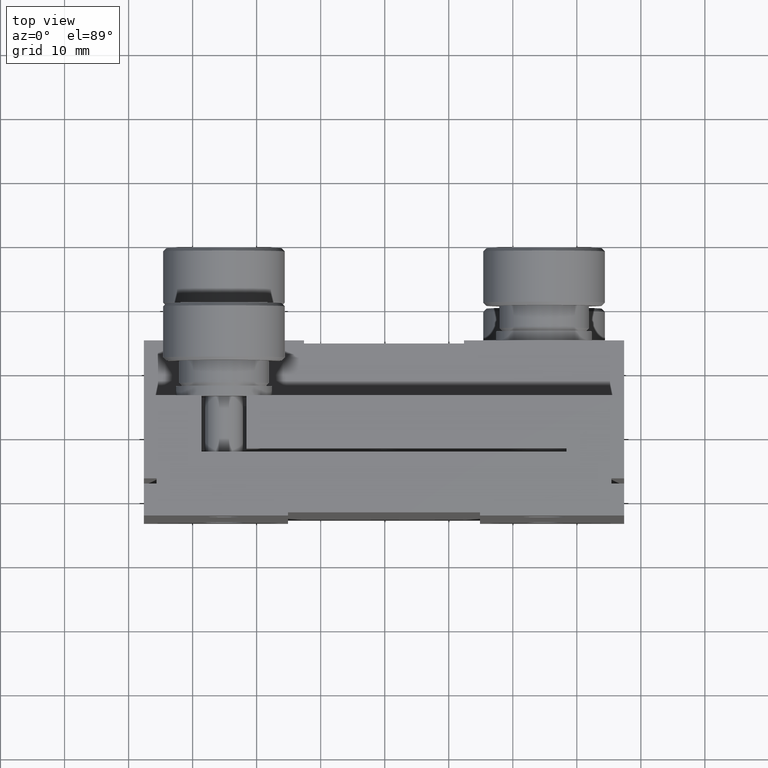
[diagram: clean part render]
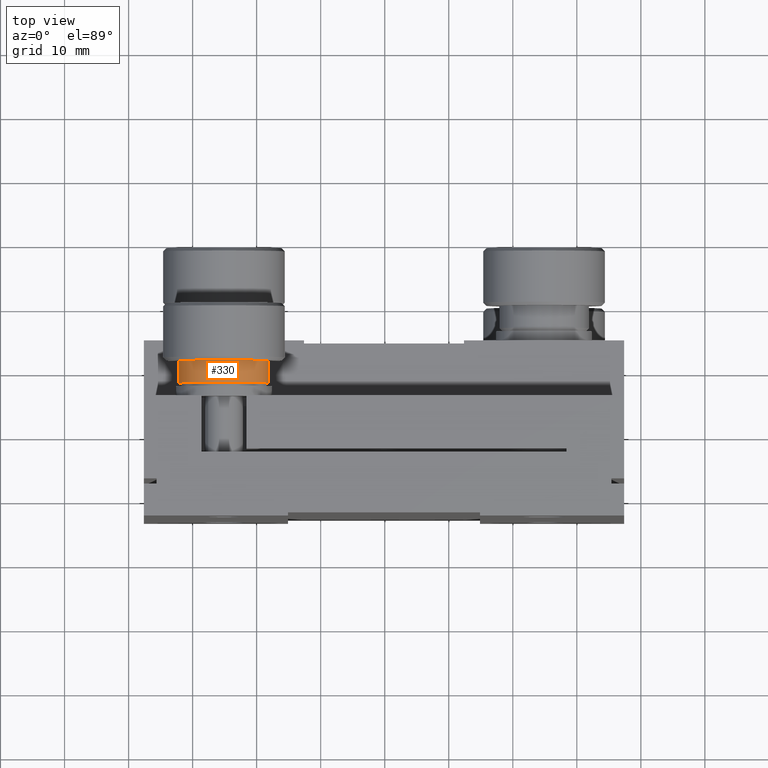
[diagram: same view with one face highlighted and labeled with its STEP entity id]
A machine part, top view. The second image highlights one B-rep face of the part: STEP entity #330.
In plain terms, the highlighted cylindrical surface (partial cylindrical patch) has radius 7 mm, axis along (-0, -1, -0).
Its self-contained STEP definition (entity closure, byte-faithful):
#90 = CARTESIAN_POINT ( 'NONE',  ( -18.11353315168026500, 11.22107175295186300, 25.00000000000000000 ) ) ;
#155 = CARTESIAN_POINT ( 'NONE',  ( -18.11353315168026500, 11.22107175295186300, 25.00000000000000000 ) ) ;
#208 = DIRECTION ( 'NONE',  ( -3.086856409163671800E-031, -1.000000000000000000, -2.442292799147333100E-016 ) ) ;
#330 = ADVANCED_FACE ( 'NONE', ( #2255 ), #366, .T. ) ;
#366 = CYLINDRICAL_SURFACE ( 'NONE', #3369, 7.000000000000055100 ) ;
#437 = EDGE_CURVE ( 'NONE', #6097, #3781, #2987, .T. ) ;
#459 = EDGE_CURVE ( 'NONE', #6345, #3418, #1425, .T. ) ;
#529 = CARTESIAN_POINT ( 'NONE',  ( -25.11353315168032200, 11.22107175295186300, 25.00000000000000000 ) ) ;
#626 = VECTOR ( 'NONE', #208, 1000.000000000000000 ) ;
#805 = AXIS2_PLACEMENT_3D ( 'NONE', #529, #2139, #1128 ) ;
#1128 = DIRECTION ( 'NONE',  ( 1.000000000000000000, 0.0000000000000000000, 0.0000000000000000000 ) ) ;
#1183 = EDGE_LOOP ( 'NONE', ( #6162, #4057, #4544, #2726 ) ) ;
#1286 = CARTESIAN_POINT ( 'NONE',  ( -25.11353315168032200, 11.22107175295186300, 25.00000000000000000 ) ) ;
#1415 = EDGE_CURVE ( 'NONE', #6345, #3781, #3394, .T. ) ;
#1425 = CIRCLE ( 'NONE', #805, 7.000000000000055100 ) ;
#1678 = DIRECTION ( 'NONE',  ( -1.000000000000000000, 0.0000000000000000000, 0.0000000000000000000 ) ) ;
#1822 = DIRECTION ( 'NONE',  ( 1.000000000000000000, 0.0000000000000000000, 0.0000000000000000000 ) ) ;
#2139 = DIRECTION ( 'NONE',  ( -3.086856409163671800E-031, -1.000000000000000000, -2.442292799147333100E-016 ) ) ;
#2255 = FACE_OUTER_BOUND ( 'NONE', #1183, .T. ) ;
#2340 = CARTESIAN_POINT ( 'NONE',  ( -32.11353315168037900, 7.721071752951860200, 25.00000000000000000 ) ) ;
#2572 = VECTOR ( 'NONE', #4270, 1000.000000000000000 ) ;
#2660 = CARTESIAN_POINT ( 'NONE',  ( -25.11353315168032200, 7.721071752951860200, 25.00000000000000000 ) ) ;
#2726 = ORIENTED_EDGE ( 'NONE', *, *, #1415, .F. ) ;
#2987 = CIRCLE ( 'NONE', #6541, 7.000000000000055100 ) ;
#3197 = CARTESIAN_POINT ( 'NONE',  ( -18.11353315168026500, 7.721071752951860200, 25.00000000000000000 ) ) ;
#3369 = AXIS2_PLACEMENT_3D ( 'NONE', #1286, #3900, #1822 ) ;
#3394 = LINE ( 'NONE', #90, #2572 ) ;
#3418 = VERTEX_POINT ( 'NONE', #3792 ) ;
#3781 = VERTEX_POINT ( 'NONE', #3197 ) ;
#3792 = CARTESIAN_POINT ( 'NONE',  ( -32.11353315168032200, 11.22107175295186300, 25.00000000000000000 ) ) ;
#3900 = DIRECTION ( 'NONE',  ( -3.086856409163671800E-031, -1.000000000000000000, -2.442292799147333100E-016 ) ) ;
#4057 = ORIENTED_EDGE ( 'NONE', *, *, #6061, .T. ) ;
#4270 = DIRECTION ( 'NONE',  ( -3.086856409163671800E-031, -1.000000000000000000, -2.442292799147333100E-016 ) ) ;
#4544 = ORIENTED_EDGE ( 'NONE', *, *, #437, .T. ) ;
#6061 = EDGE_CURVE ( 'NONE', #3418, #6097, #6589, .T. ) ;
#6097 = VERTEX_POINT ( 'NONE', #2340 ) ;
#6162 = ORIENTED_EDGE ( 'NONE', *, *, #459, .T. ) ;
#6244 = DIRECTION ( 'NONE',  ( 3.086856409163671800E-031, 1.000000000000000000, 2.442292799147333100E-016 ) ) ;
#6345 = VERTEX_POINT ( 'NONE', #155 ) ;
#6541 = AXIS2_PLACEMENT_3D ( 'NONE', #2660, #6244, #1678 ) ;
#6589 = LINE ( 'NONE', #6592, #626 ) ;
#6592 = CARTESIAN_POINT ( 'NONE',  ( -32.11353315168037900, 11.22107175295186300, 25.00000000000000000 ) ) ;